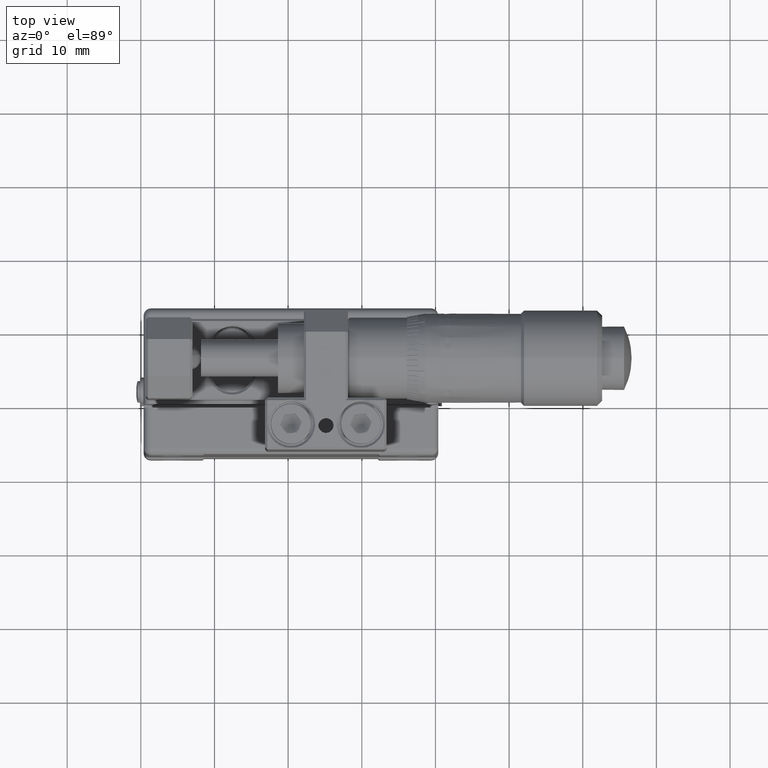
[diagram: clean part render]
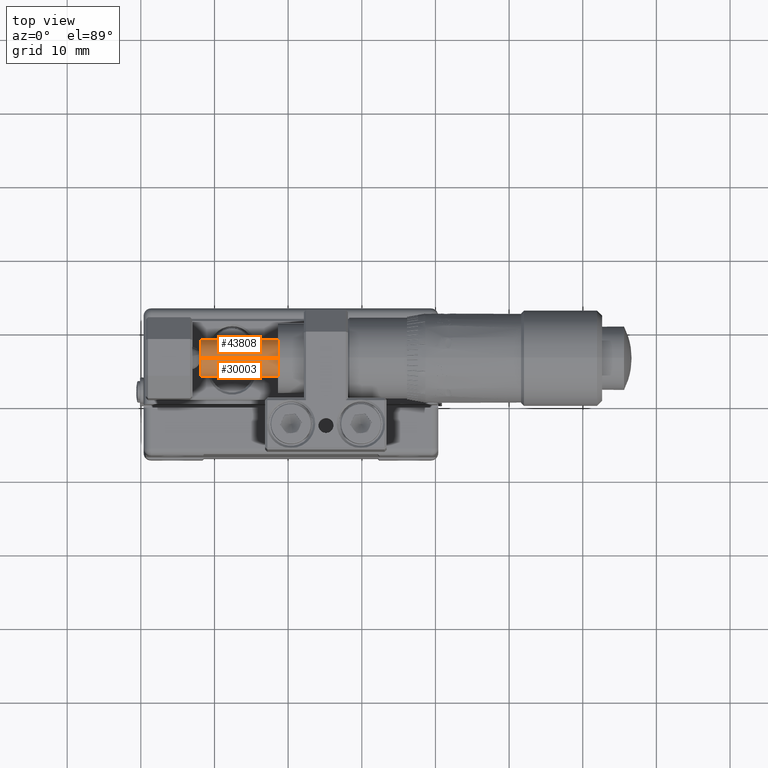
[diagram: same view with one multi-face feature highlighted, each face labeled with its STEP entity id]
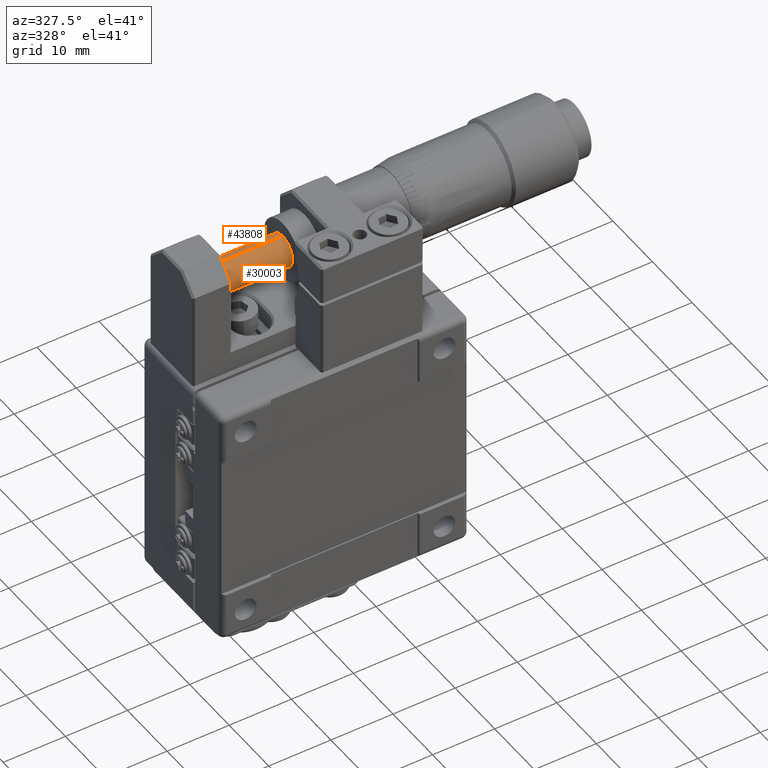
[diagram: same view with one multi-face feature highlighted, each face labeled with its STEP entity id]
A machine part, top view. The highlighted faces form ONE feature: a constant-radius fillet chain: 2 tangent blend faces with common blend radius 2.5 mm. The faces share edges in the B-rep.
A second angle (auxiliary view) of the same feature is appended — it is thin or edge-on in the first view.
Their STEP definitions:
[1] entity #30003 (Cylinder):
#450 = CYLINDRICAL_SURFACE ( 'NONE', #19021, 2.500000704546683661 ) ;
#4042 = CARTESIAN_POINT ( 'NONE',  ( -1.370323841429372136, 5.708263539921860641, 32.50000000000000000 ) ) ;
#4273 = VERTEX_POINT ( 'NONE', #26421 ) ;
#8287 = VERTEX_POINT ( 'NONE', #47998 ) ;
#12223 = ORIENTED_EDGE ( 'NONE', *, *, #42342, .T. ) ;
#13645 = DIRECTION ( 'NONE',  ( 1.000000000000000000, 2.465190328815659976E-32, 0.000000000000000000 ) ) ;
#15403 = VERTEX_POINT ( 'NONE', #40789 ) ;
#15419 = CARTESIAN_POINT ( 'NONE',  ( 46.62967615857060366, 5.708263539921860641, 35.00000070454670009 ) ) ;
#16621 = DIRECTION ( 'NONE',  ( 1.000000000000000000, 2.465190328815659976E-32, 0.000000000000000000 ) ) ;
#17171 = DIRECTION ( 'NONE',  ( 1.000000000000000000, 2.465190328815659976E-32, 0.000000000000000000 ) ) ;
#19021 = AXIS2_PLACEMENT_3D ( 'NONE', #53660, #13645, #40207 ) ;
#19797 = LINE ( 'NONE', #15419, #34513 ) ;
#21296 = DIRECTION ( 'NONE',  ( 0.000000000000000000, 0.000000000000000000, -1.000000000000000000 ) ) ;
#21533 = FACE_OUTER_BOUND ( 'NONE', #35158, .T. ) ;
#24648 = DIRECTION ( 'NONE',  ( 1.000000000000000000, 2.465190328815659976E-32, 2.465190328815659976E-32 ) ) ;
#25050 = CARTESIAN_POINT ( 'NONE',  ( -11.87032384142938035, 5.708263539921860641, 32.50000000000000000 ) ) ;
#25853 = EDGE_CURVE ( 'NONE', #15403, #8287, #51552, .T. ) ;
#26421 = CARTESIAN_POINT ( 'NONE',  ( -1.370323841429372136, 5.708263539921860641, 35.00000213636594992 ) ) ;
#29157 = DIRECTION ( 'NONE',  ( 1.000000000000000000, 2.465190328815659976E-32, 2.465190328815659976E-32 ) ) ;
#29725 = DIRECTION ( 'NONE',  ( 0.000000000000000000, 0.000000000000000000, -1.000000000000000000 ) ) ;
#30003 = ADVANCED_FACE ( 'NONE', ( #21533 ), #450, .T. ) ;
#34513 = VECTOR ( 'NONE', #29157, 1000.000000000000000 ) ;
#34977 = CARTESIAN_POINT ( 'NONE',  ( -11.87032384142938035, 5.708263539921860641, 34.99999927272745026 ) ) ;
#35158 = EDGE_LOOP ( 'NONE', ( #37365, #12223, #57637, #43780 ) ) ;
#37365 = ORIENTED_EDGE ( 'NONE', *, *, #46368, .F. ) ;
#38308 = CIRCLE ( 'NONE', #43878, 2.499999272727451149 ) ;
#38462 = VECTOR ( 'NONE', #24648, 1000.000000000000000 ) ;
#40207 = DIRECTION ( 'NONE',  ( 0.000000000000000000, 0.000000000000000000, -1.000000000000000000 ) ) ;
#40789 = CARTESIAN_POINT ( 'NONE',  ( -11.87032384142938035, 5.708263539921860641, 30.00000072727254974 ) ) ;
#42342 = EDGE_CURVE ( 'NONE', #52202, #15403, #38308, .T. ) ;
#43780 = ORIENTED_EDGE ( 'NONE', *, *, #56522, .F. ) ;
#43878 = AXIS2_PLACEMENT_3D ( 'NONE', #25050, #17171, #29725 ) ;
#46368 = EDGE_CURVE ( 'NONE', #52202, #4273, #19797, .T. ) ;
#47998 = CARTESIAN_POINT ( 'NONE',  ( -1.370323841429372136, 5.708263539921860641, 29.99999786363410337 ) ) ;
#50808 = CIRCLE ( 'NONE', #50926, 2.500002136365919725 ) ;
#50926 = AXIS2_PLACEMENT_3D ( 'NONE', #4042, #16621, #21296 ) ;
#51552 = LINE ( 'NONE', #51836, #38462 ) ;
#51836 = CARTESIAN_POINT ( 'NONE',  ( 46.62967615857060366, 5.708263539921860641, 29.99999929545334965 ) ) ;
#52202 = VERTEX_POINT ( 'NONE', #34977 ) ;
#53660 = CARTESIAN_POINT ( 'NONE',  ( 46.62967615857060366, 5.708263539921860641, 32.50000000000000000 ) ) ;
#56522 = EDGE_CURVE ( 'NONE', #4273, #8287, #50808, .T. ) ;
#57637 = ORIENTED_EDGE ( 'NONE', *, *, #25853, .T. ) ;
[2] entity #43808 (Cylinder):
#2603 = ORIENTED_EDGE ( 'NONE', *, *, #25853, .F. ) ;
#3476 = DIRECTION ( 'NONE',  ( 0.000000000000000000, 0.000000000000000000, -1.000000000000000000 ) ) ;
#4273 = VERTEX_POINT ( 'NONE', #26421 ) ;
#6019 = CIRCLE ( 'NONE', #9734, 2.499999272727451149 ) ;
#8287 = VERTEX_POINT ( 'NONE', #47998 ) ;
#9491 = DIRECTION ( 'NONE',  ( 0.000000000000000000, 0.000000000000000000, -1.000000000000000000 ) ) ;
#9734 = AXIS2_PLACEMENT_3D ( 'NONE', #52013, #57238, #3476 ) ;
#11872 = EDGE_CURVE ( 'NONE', #15403, #52202, #6019, .T. ) ;
#15403 = VERTEX_POINT ( 'NONE', #40789 ) ;
#15419 = CARTESIAN_POINT ( 'NONE',  ( 46.62967615857060366, 5.708263539921860641, 35.00000070454670009 ) ) ;
#18530 = CARTESIAN_POINT ( 'NONE',  ( -1.370323841429372136, 5.708263539921860641, 32.50000000000000000 ) ) ;
#19797 = LINE ( 'NONE', #15419, #34513 ) ;
#20920 = FACE_OUTER_BOUND ( 'NONE', #40641, .T. ) ;
#21199 = DIRECTION ( 'NONE',  ( 1.000000000000000000, 2.465190328815659976E-32, 0.000000000000000000 ) ) ;
#24648 = DIRECTION ( 'NONE',  ( 1.000000000000000000, 2.465190328815659976E-32, 2.465190328815659976E-32 ) ) ;
#25853 = EDGE_CURVE ( 'NONE', #15403, #8287, #51552, .T. ) ;
#25869 = DIRECTION ( 'NONE',  ( 0.000000000000000000, 0.000000000000000000, -1.000000000000000000 ) ) ;
#26421 = CARTESIAN_POINT ( 'NONE',  ( -1.370323841429372136, 5.708263539921860641, 35.00000213636594992 ) ) ;
#28138 = AXIS2_PLACEMENT_3D ( 'NONE', #48360, #21199, #25869 ) ;
#29157 = DIRECTION ( 'NONE',  ( 1.000000000000000000, 2.465190328815659976E-32, 2.465190328815659976E-32 ) ) ;
#33162 = ORIENTED_EDGE ( 'NONE', *, *, #44605, .F. ) ;
#34513 = VECTOR ( 'NONE', #29157, 1000.000000000000000 ) ;
#34977 = CARTESIAN_POINT ( 'NONE',  ( -11.87032384142938035, 5.708263539921860641, 34.99999927272745026 ) ) ;
#38462 = VECTOR ( 'NONE', #24648, 1000.000000000000000 ) ;
#39593 = CYLINDRICAL_SURFACE ( 'NONE', #28138, 2.500000704546683661 ) ;
#40641 = EDGE_LOOP ( 'NONE', ( #52387, #52215, #33162, #2603 ) ) ;
#40789 = CARTESIAN_POINT ( 'NONE',  ( -11.87032384142938035, 5.708263539921860641, 30.00000072727254974 ) ) ;
#43808 = ADVANCED_FACE ( 'NONE', ( #20920 ), #39593, .T. ) ;
#44605 = EDGE_CURVE ( 'NONE', #8287, #4273, #56075, .T. ) ;
#46368 = EDGE_CURVE ( 'NONE', #52202, #4273, #19797, .T. ) ;
#47998 = CARTESIAN_POINT ( 'NONE',  ( -1.370323841429372136, 5.708263539921860641, 29.99999786363410337 ) ) ;
#48360 = CARTESIAN_POINT ( 'NONE',  ( 46.62967615857060366, 5.708263539921860641, 32.50000000000000000 ) ) ;
#51552 = LINE ( 'NONE', #51836, #38462 ) ;
#51836 = CARTESIAN_POINT ( 'NONE',  ( 46.62967615857060366, 5.708263539921860641, 29.99999929545334965 ) ) ;
#52013 = CARTESIAN_POINT ( 'NONE',  ( -11.87032384142938035, 5.708263539921860641, 32.50000000000000000 ) ) ;
#52202 = VERTEX_POINT ( 'NONE', #34977 ) ;
#52215 = ORIENTED_EDGE ( 'NONE', *, *, #46368, .T. ) ;
#52387 = ORIENTED_EDGE ( 'NONE', *, *, #11872, .T. ) ;
#53616 = DIRECTION ( 'NONE',  ( 1.000000000000000000, 2.465190328815659976E-32, 0.000000000000000000 ) ) ;
#56075 = CIRCLE ( 'NONE', #56209, 2.500002136365919725 ) ;
#56209 = AXIS2_PLACEMENT_3D ( 'NONE', #18530, #53616, #9491 ) ;
#57238 = DIRECTION ( 'NONE',  ( 1.000000000000000000, 2.465190328815659976E-32, 0.000000000000000000 ) ) ;